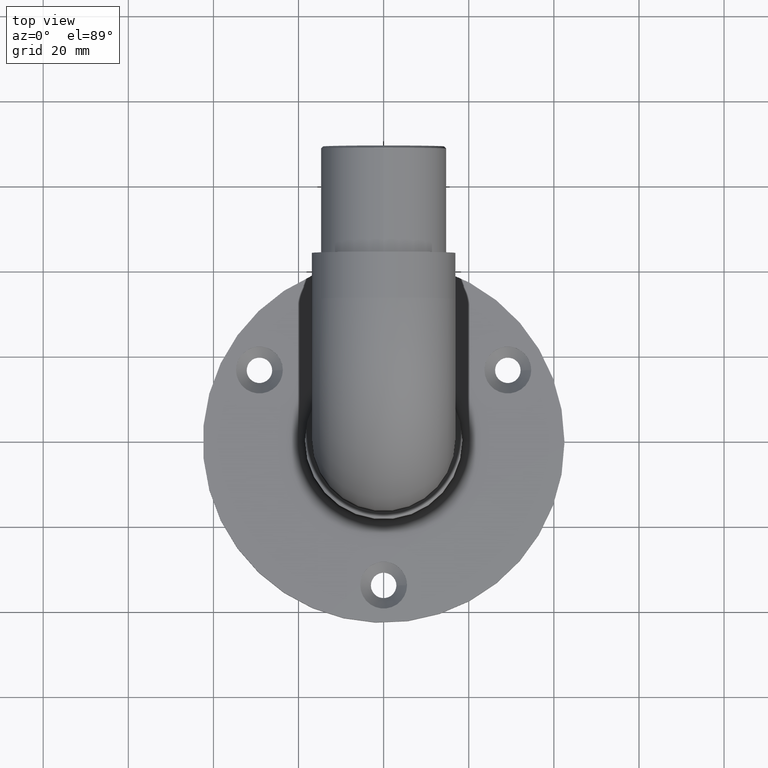
[diagram: clean part render]
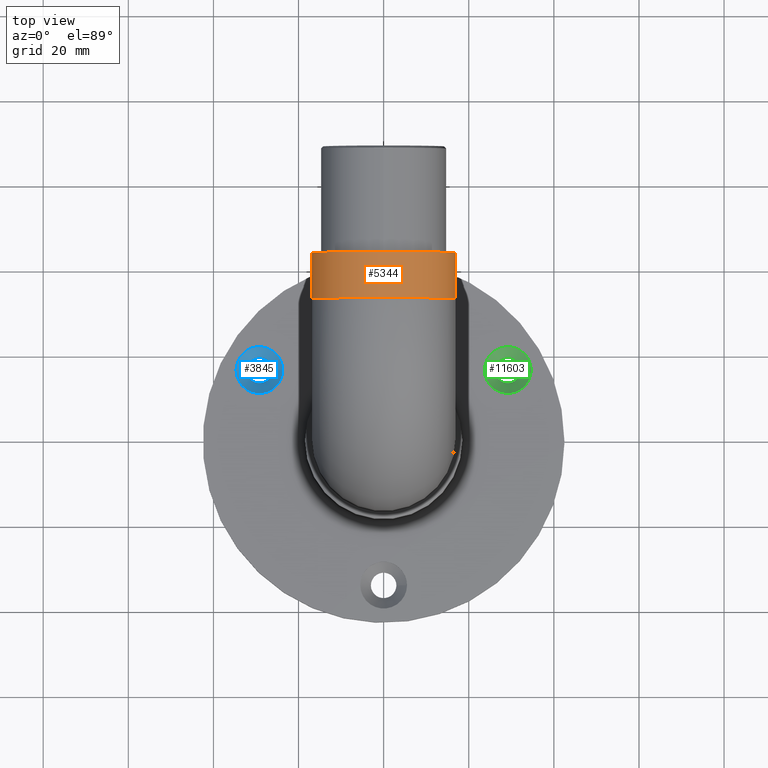
[diagram: same view with three faces highlighted in distinct colors, each labeled with its STEP entity id]
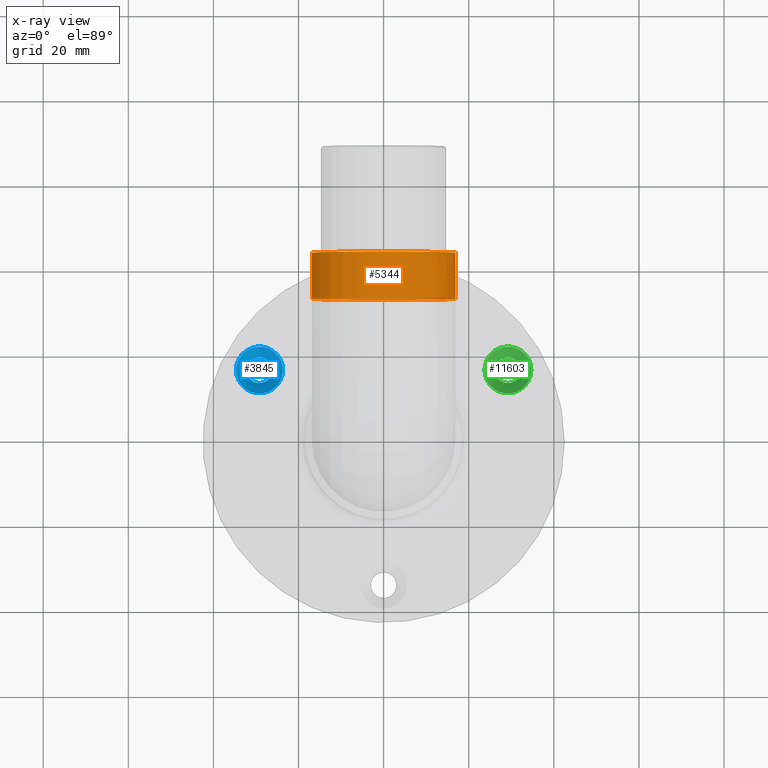
[diagram: x-ray of the same camera — body ghosted, the three highlighted faces saturated]
A machine part, top view with three faces highlighted in distinct colors.
The next image is the same camera in x-ray (body ghosted, the three faces saturated) — at least one of them is partly hidden behind the body in this view.
Their STEP definitions:

[orange] entity #5344 — the highlighted cylindrical surface (bore or boss wall) has radius 16.85 mm, axis along (0, -1, 0).
#105 = VERTEX_POINT ( 'NONE', #4009 ) ;
#2152 = CARTESIAN_POINT ( 'NONE',  ( 0.000000000000000000, 43.00000000000000711, 84.00000000000000000 ) ) ;
#2407 = FACE_OUTER_BOUND ( 'NONE', #2895, .T. ) ;
#2568 = EDGE_CURVE ( 'NONE', #105, #105, #6960, .T. ) ;
#2895 = EDGE_LOOP ( 'NONE', ( #6306 ) ) ;
#3008 = CYLINDRICAL_SURFACE ( 'NONE', #12268, 16.85000000000000497 ) ;
#3547 = AXIS2_PLACEMENT_3D ( 'NONE', #2152, #4829, #7176 ) ;
#3592 = AXIS2_PLACEMENT_3D ( 'NONE', #16851, #15641, #12981 ) ;
#4009 = CARTESIAN_POINT ( 'NONE',  ( 16.85000000000000142, 32.19999999999999574, 84.00000000000001421 ) ) ;
#4829 = DIRECTION ( 'NONE',  ( 0.000000000000000000, 1.000000000000000000, -1.284980352575411319E-15 ) ) ;
#5297 = FACE_OUTER_BOUND ( 'NONE', #6251, .T. ) ;
#5344 = ADVANCED_FACE ( 'NONE', ( #2407, #5297 ), #3008, .T. ) ;
#5376 = CARTESIAN_POINT ( 'NONE',  ( 16.85000000000000142, 43.00000000000000711, 84.00000000000000000 ) ) ;
#6251 = EDGE_LOOP ( 'NONE', ( #15919 ) ) ;
#6306 = ORIENTED_EDGE ( 'NONE', *, *, #2568, .T. ) ;
#6960 = CIRCLE ( 'NONE', #3592, 16.85000000000000142 ) ;
#7176 = DIRECTION ( 'NONE',  ( 1.000000000000000000, 0.000000000000000000, 0.000000000000000000 ) ) ;
#11448 = CIRCLE ( 'NONE', #3547, 16.85000000000000142 ) ;
#11932 = DIRECTION ( 'NONE',  ( 0.000000000000000000, -1.235411377550247916E-15, -1.000000000000000000 ) ) ;
#12268 = AXIS2_PLACEMENT_3D ( 'NONE', #13007, #15665, #11932 ) ;
#12981 = DIRECTION ( 'NONE',  ( 1.000000000000000000, 0.000000000000000000, 0.000000000000000000 ) ) ;
#13007 = CARTESIAN_POINT ( 'NONE',  ( 0.000000000000000000, 43.00000000000000711, 84.00000000000000000 ) ) ;
#15304 = EDGE_CURVE ( 'NONE', #16469, #16469, #11448, .T. ) ;
#15641 = DIRECTION ( 'NONE',  ( 0.000000000000000000, 1.000000000000000000, -1.284980352575411319E-15 ) ) ;
#15665 = DIRECTION ( 'NONE',  ( 0.000000000000000000, -1.000000000000000000, 1.284980352575411319E-15 ) ) ;
#15919 = ORIENTED_EDGE ( 'NONE', *, *, #15304, .F. ) ;
#16469 = VERTEX_POINT ( 'NONE', #5376 ) ;
#16851 = CARTESIAN_POINT ( 'NONE',  ( 0.000000000000000000, 32.19999999999999574, 84.00000000000001421 ) ) ;

[blue] entity #3845 — the highlighted conical surface has half-angle 45 deg.
#539 = CARTESIAN_POINT ( 'NONE',  ( -29.18505610753574331, 16.84999999999972786, 1.500000000000003997 ) ) ;
#663 = DIRECTION ( 'NONE',  ( 1.000000000000000000, 0.000000000000000000, 0.000000000000000000 ) ) ;
#2070 = ORIENTED_EDGE ( 'NONE', *, *, #7503, .F. ) ;
#2829 = CONICAL_SURFACE ( 'NONE', #4714, 5.499999999999998224, 0.7853981633974490562 ) ;
#3187 = VERTEX_POINT ( 'NONE', #14653 ) ;
#3845 = ADVANCED_FACE ( 'NONE', ( #5095, #5525 ), #2829, .F. ) ;
#4714 = AXIS2_PLACEMENT_3D ( 'NONE', #7112, #8520, #12356 ) ;
#5095 = FACE_BOUND ( 'NONE', #12416, .T. ) ;
#5525 = FACE_OUTER_BOUND ( 'NONE', #13162, .T. ) ;
#6346 = CIRCLE ( 'NONE', #10969, 2.999999999999999112 ) ;
#7071 = AXIS2_PLACEMENT_3D ( 'NONE', #14217, #16671, #10206 ) ;
#7112 = CARTESIAN_POINT ( 'NONE',  ( -29.18505610753574331, 16.84999999999972786, 3.999999999999999112 ) ) ;
#7503 = EDGE_CURVE ( 'NONE', #3187, #3187, #6346, .T. ) ;
#7880 = ORIENTED_EDGE ( 'NONE', *, *, #15345, .T. ) ;
#8176 = CARTESIAN_POINT ( 'NONE',  ( -23.68505610753574331, 16.84999999999972786, 3.999999999999999112 ) ) ;
#8520 = DIRECTION ( 'NONE',  ( -0.000000000000000000, -0.000000000000000000, 1.000000000000000000 ) ) ;
#10206 = DIRECTION ( 'NONE',  ( 1.000000000000000000, 0.000000000000000000, 0.000000000000000000 ) ) ;
#10969 = AXIS2_PLACEMENT_3D ( 'NONE', #539, #14952, #663 ) ;
#11028 = CIRCLE ( 'NONE', #7071, 5.499999999999998224 ) ;
#12356 = DIRECTION ( 'NONE',  ( 1.000000000000000000, 0.000000000000000000, 0.000000000000000000 ) ) ;
#12416 = EDGE_LOOP ( 'NONE', ( #2070 ) ) ;
#13162 = EDGE_LOOP ( 'NONE', ( #7880 ) ) ;
#14217 = CARTESIAN_POINT ( 'NONE',  ( -29.18505610753574331, 16.84999999999972786, 3.999999999999999112 ) ) ;
#14653 = CARTESIAN_POINT ( 'NONE',  ( -26.18505610753574331, 16.84999999999972786, 1.500000000000003997 ) ) ;
#14827 = VERTEX_POINT ( 'NONE', #8176 ) ;
#14952 = DIRECTION ( 'NONE',  ( -0.000000000000000000, -0.000000000000000000, 1.000000000000000000 ) ) ;
#15345 = EDGE_CURVE ( 'NONE', #14827, #14827, #11028, .T. ) ;
#16671 = DIRECTION ( 'NONE',  ( -0.000000000000000000, -0.000000000000000000, 1.000000000000000000 ) ) ;

[green] entity #11603 — the highlighted conical surface has half-angle 45 deg.
#262 = FACE_OUTER_BOUND ( 'NONE', #12803, .T. ) ;
#1132 = VERTEX_POINT ( 'NONE', #8115 ) ;
#3562 = DIRECTION ( 'NONE',  ( -0.000000000000000000, -0.000000000000000000, 1.000000000000000000 ) ) ;
#4514 = CIRCLE ( 'NONE', #9666, 2.999999999999999112 ) ;
#5005 = CONICAL_SURFACE ( 'NONE', #13934, 5.499999999999994671, 0.7853981633974482790 ) ;
#6867 = FACE_BOUND ( 'NONE', #10063, .T. ) ;
#6885 = CARTESIAN_POINT ( 'NONE',  ( 34.68505610753550172, 16.85000000000014353, 3.999999999999999112 ) ) ;
#8115 = CARTESIAN_POINT ( 'NONE',  ( 32.18505610753550172, 16.85000000000014353, 1.500000000000003997 ) ) ;
#8437 = EDGE_CURVE ( 'NONE', #10592, #10592, #8620, .T. ) ;
#8620 = CIRCLE ( 'NONE', #14984, 5.499999999999994671 ) ;
#8788 = DIRECTION ( 'NONE',  ( -0.000000000000000000, -0.000000000000000000, 1.000000000000000000 ) ) ;
#9200 = EDGE_CURVE ( 'NONE', #1132, #1132, #4514, .T. ) ;
#9666 = AXIS2_PLACEMENT_3D ( 'NONE', #14505, #15654, #10558 ) ;
#10063 = EDGE_LOOP ( 'NONE', ( #15327 ) ) ;
#10558 = DIRECTION ( 'NONE',  ( 1.000000000000000000, 0.000000000000000000, 0.000000000000000000 ) ) ;
#10592 = VERTEX_POINT ( 'NONE', #6885 ) ;
#11603 = ADVANCED_FACE ( 'NONE', ( #6867, #262 ), #5005, .F. ) ;
#12612 = CARTESIAN_POINT ( 'NONE',  ( 29.18505610753550528, 16.85000000000014353, 3.999999999999999112 ) ) ;
#12803 = EDGE_LOOP ( 'NONE', ( #13747 ) ) ;
#12814 = DIRECTION ( 'NONE',  ( 1.000000000000000000, 0.000000000000000000, 0.000000000000000000 ) ) ;
#13747 = ORIENTED_EDGE ( 'NONE', *, *, #8437, .T. ) ;
#13934 = AXIS2_PLACEMENT_3D ( 'NONE', #12612, #3562, #16577 ) ;
#14505 = CARTESIAN_POINT ( 'NONE',  ( 29.18505610753550528, 16.85000000000014353, 1.500000000000003997 ) ) ;
#14984 = AXIS2_PLACEMENT_3D ( 'NONE', #15210, #8788, #12814 ) ;
#15210 = CARTESIAN_POINT ( 'NONE',  ( 29.18505610753550528, 16.85000000000014353, 3.999999999999999112 ) ) ;
#15327 = ORIENTED_EDGE ( 'NONE', *, *, #9200, .F. ) ;
#15654 = DIRECTION ( 'NONE',  ( -0.000000000000000000, -0.000000000000000000, 1.000000000000000000 ) ) ;
#16577 = DIRECTION ( 'NONE',  ( 1.000000000000000000, 0.000000000000000000, 0.000000000000000000 ) ) ;